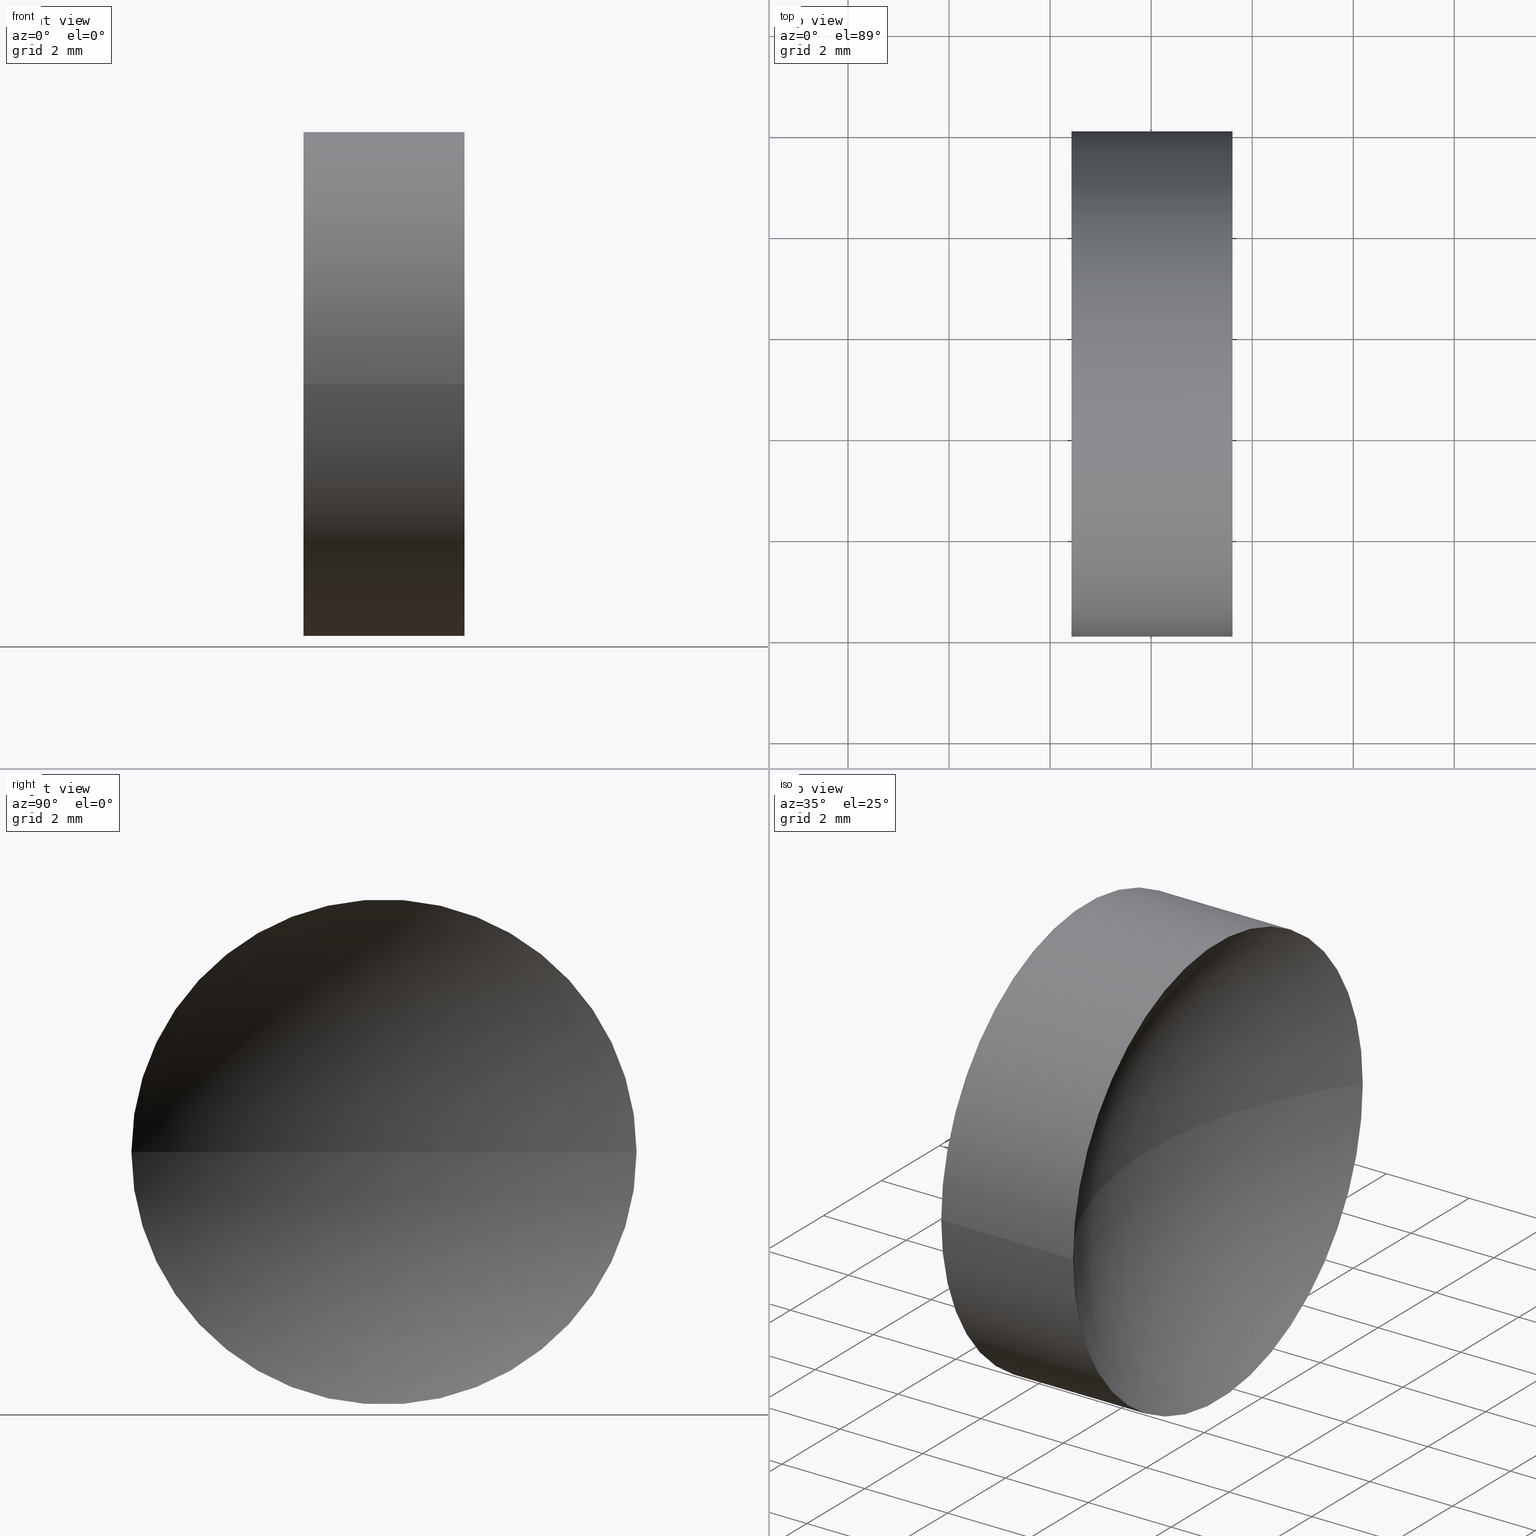
[diagram: canonical four-view strip — front | top / right | iso, engineering-drawing reading convention]
A machine part, canonical four-view strip (front | top / right | iso — engineering-drawing reading convention). The complete STEP part file that produces these views, byte-faithful:
ISO-10303-21;
HEADER;
FILE_DESCRIPTION (( 'STEP AP214' ),
    '1' );
FILE_NAME ('120131.STEP',
    '2019-06-19T02:30:04',
    ( '' ),
    ( '' ),
    'SwSTEP 2.0',
    'SolidWorks 2016',
    '' );
FILE_SCHEMA (( 'AUTOMOTIVE_DESIGN' ));
ENDSEC;

DATA;
#1 = CARTESIAN_POINT ( 'NONE',  ( 21.50597511808246100, 13.03112609140304200, 0.0000000000000000000 ) ) ;
#2 = ORIENTED_EDGE ( 'NONE', *, *, #95, .F. ) ;
#3 =( GEOMETRIC_REPRESENTATION_CONTEXT ( 3 ) GLOBAL_UNCERTAINTY_ASSIGNED_CONTEXT ( ( #143 ) ) GLOBAL_UNIT_ASSIGNED_CONTEXT ( ( #86, #62, #122 ) ) REPRESENTATION_CONTEXT ( 'NONE', 'WORKASPACE' ) );
#4 = ADVANCED_BREP_SHAPE_REPRESENTATION ( '120131', ( #155, #18 ), #160 ) ;
#5 = CIRCLE ( 'NONE', #43, 5.000000000000000900 ) ;
#6 = FACE_OUTER_BOUND ( 'NONE', #110, .T. ) ;
#7 = SURFACE_STYLE_USAGE ( .BOTH. , #63 ) ;
#8 = EDGE_LOOP ( 'NONE', ( #31, #13, #59 ) ) ;
#9 =( LENGTH_UNIT ( ) NAMED_UNIT ( * ) SI_UNIT ( .MILLI., .METRE. ) );
#10 = DIRECTION ( 'NONE',  ( 0.0000000000000000000, -1.000000000000000000, 0.0000000000000000000 ) ) ;
#11 = MECHANICAL_DESIGN_GEOMETRIC_PRESENTATION_REPRESENTATION (  '', ( #38 ), #3 ) ;
#12 = CARTESIAN_POINT ( 'NONE',  ( 21.50597511808246100, 18.03112609140304200, 6.123233995736768300E-016 ) ) ;
#13 = ORIENTED_EDGE ( 'NONE', *, *, #139, .T. ) ;
#14 = LINE ( 'NONE', #12, #152 ) ;
#15 = DIRECTION ( 'NONE',  ( -1.000000000000000000, 3.159171411554934600E-016, -0.0000000000000000000 ) ) ;
#16 = VERTEX_POINT ( 'NONE', #92 ) ;
#17 = PRODUCT_DEFINITION_CONTEXT ( 'detailed design', #125, 'design' ) ;
#18 = AXIS2_PLACEMENT_3D ( 'NONE', #140, #111, #83 ) ;
#19 = PRODUCT_CONTEXT ( 'NONE', #60, 'mechanical' ) ;
#20 = DIRECTION ( 'NONE',  ( 3.868869157118576300E-032, 1.224646799147353200E-016, -1.000000000000000000 ) ) ;
#21 = COLOUR_RGB ( '',1.000000000000000000, 1.000000000000000000, 1.000000000000000000 ) ;
#22 = FACE_OUTER_BOUND ( 'NONE', #56, .T. ) ;
#23 = APPLICATION_PROTOCOL_DEFINITION ( 'draft international standard', 'automotive_design', 1998, #125 ) ;
#24 =( NAMED_UNIT ( * ) PLANE_ANGLE_UNIT ( ) SI_UNIT ( $, .RADIAN. ) );
#25 = DIRECTION ( 'NONE',  ( 3.159171411554934600E-016, 1.000000000000000000, 0.0000000000000000000 ) ) ;
#26 = VERTEX_POINT ( 'NONE', #133 ) ;
#27 = DIRECTION ( 'NONE',  ( 0.0000000000000000000, 0.0000000000000000000, 1.000000000000000000 ) ) ;
#28 = DIRECTION ( 'NONE',  ( -1.000000000000000000, 3.159171411554934600E-016, -0.0000000000000000000 ) ) ;
#29 = DIRECTION ( 'NONE',  ( 0.0000000000000000000, 1.000000000000000000, 0.0000000000000000000 ) ) ;
#30 = PRODUCT_DEFINITION ( 'δ֪', '', #45, #17 ) ;
#31 = ORIENTED_EDGE ( 'NONE', *, *, #120, .F. ) ;
#32 = CIRCLE ( 'NONE', #117, 5.000000000000000900 ) ;
#33 = ORIENTED_EDGE ( 'NONE', *, *, #95, .T. ) ;
#34 = SPHERICAL_SURFACE ( 'NONE', #68, 8.259999999999996200 ) ;
#35 = SURFACE_STYLE_USAGE ( .BOTH. , #100 ) ;
#36 = UNCERTAINTY_MEASURE_WITH_UNIT (LENGTH_MEASURE( 1.000000000000000100E-005 ), #101, 'distance_accuracy_value', 'NONE');
#37 = COLOUR_RGB ( '',1.000000000000000000, 1.000000000000000000, 1.000000000000000000 ) ;
#38 = STYLED_ITEM ( 'NONE', ( #42 ), #4 ) ;
#39 = CARTESIAN_POINT ( 'NONE',  ( 21.50597511808246100, 8.031126091403040200, 0.0000000000000000000 ) ) ;
#40 = DIRECTION ( 'NONE',  ( 0.0000000000000000000, 1.000000000000000000, 0.0000000000000000000 ) ) ;
#41 = CARTESIAN_POINT ( 'NONE',  ( 25.60946209566776900, 18.03112609140304600, 0.0000000000000000000 ) ) ;
#42 = PRESENTATION_STYLE_ASSIGNMENT (( #35 ) ) ;
#43 = AXIS2_PLACEMENT_3D ( 'NONE', #116, #28, #156 ) ;
#44 = ORIENTED_EDGE ( 'NONE', *, *, #153, .F. ) ;
#45 = PRODUCT_DEFINITION_FORMATION_WITH_SPECIFIED_SOURCE ( '�κ�', '', #108, .NOT_KNOWN. ) ;
#46 = FILL_AREA_STYLE ('',( #147 ) ) ;
#47 = ADVANCED_FACE ( 'NONE', ( #159 ), #34, .F. ) ;
#48 = AXIS2_PLACEMENT_3D ( 'NONE', #158, #70, #81 ) ;
#49 = FACE_OUTER_BOUND ( 'NONE', #151, .T. ) ;
#50 = DIRECTION ( 'NONE',  ( -1.000000000000000000, 3.159171411554934600E-016, -0.0000000000000000000 ) ) ;
#51 = CARTESIAN_POINT ( 'NONE',  ( 22.42423205362066000, 13.03112609140304200, 0.0000000000000000000 ) ) ;
#52 = DIRECTION ( 'NONE',  ( 0.0000000000000000000, 0.0000000000000000000, -1.000000000000000000 ) ) ;
#53 = CARTESIAN_POINT ( 'NONE',  ( 32.18423205362065400, 13.03112609140303500, 0.0000000000000000000 ) ) ;
#54 = CARTESIAN_POINT ( 'NONE',  ( 22.42423205362066000, 8.031126091403040200, 0.0000000000000000000 ) ) ;
#55 = PRESENTATION_STYLE_ASSIGNMENT (( #7 ) ) ;
#56 = EDGE_LOOP ( 'NONE', ( #96, #80, #161, #119 ) ) ;
#57 = EDGE_CURVE ( 'NONE', #69, #26, #123, .T. ) ;
#58 = ORIENTED_EDGE ( 'NONE', *, *, #139, .F. ) ;
#59 = ORIENTED_EDGE ( 'NONE', *, *, #57, .F. ) ;
#60 = APPLICATION_CONTEXT ( 'automotive_design' ) ;
#61 =( NAMED_UNIT ( * ) SI_UNIT ( $, .STERADIAN. ) SOLID_ANGLE_UNIT ( ) );
#62 =( NAMED_UNIT ( * ) PLANE_ANGLE_UNIT ( ) SI_UNIT ( $, .RADIAN. ) );
#63 = SURFACE_SIDE_STYLE ('',( #94 ) ) ;
#64 = ADVANCED_FACE ( 'NONE', ( #22 ), #114, .T. ) ;
#65 = ORIENTED_EDGE ( 'NONE', *, *, #120, .T. ) ;
#66 = ORIENTED_EDGE ( 'NONE', *, *, #103, .T. ) ;
#67 = PLANE ( 'NONE',  #138 ) ;
#68 = AXIS2_PLACEMENT_3D ( 'NONE', #53, #52, #40 ) ;
#69 = VERTEX_POINT ( 'NONE', #41 ) ;
#70 = DIRECTION ( 'NONE',  ( -1.000000000000000000, 3.159171411554934600E-016, -0.0000000000000000000 ) ) ;
#71 = AXIS2_PLACEMENT_3D ( 'NONE', #77, #27, #134 ) ;
#72 =( NAMED_UNIT ( * ) SI_UNIT ( $, .STERADIAN. ) SOLID_ANGLE_UNIT ( ) );
#73 = SPHERICAL_SURFACE ( 'NONE', #136, 8.259999999999996200 ) ;
#74 = AXIS2_PLACEMENT_3D ( 'NONE', #146, #15, #118 ) ;
#75 = CIRCLE ( 'NONE', #128, 5.000000000000002700 ) ;
#76 = DIRECTION ( 'NONE',  ( -1.000000000000000000, 3.159171411554934600E-016, -0.0000000000000000000 ) ) ;
#77 = CARTESIAN_POINT ( 'NONE',  ( 32.18423205362065400, 13.03112609140303500, 0.0000000000000000000 ) ) ;
#78 = DIRECTION ( 'NONE',  ( 0.0000000000000000000, -1.000000000000000000, 0.0000000000000000000 ) ) ;
#79 = PRESENTATION_LAYER_ASSIGNMENT (  '', '', ( #145 ) ) ;
#80 = ORIENTED_EDGE ( 'NONE', *, *, #137, .T. ) ;
#81 = DIRECTION ( 'NONE',  ( 0.0000000000000000000, -1.000000000000000000, 0.0000000000000000000 ) ) ;
#82 =( GEOMETRIC_REPRESENTATION_CONTEXT ( 3 ) GLOBAL_UNCERTAINTY_ASSIGNED_CONTEXT ( ( #97 ) ) GLOBAL_UNIT_ASSIGNED_CONTEXT ( ( #9, #24, #72 ) ) REPRESENTATION_CONTEXT ( 'NONE', 'WORKASPACE' ) );
#83 = DIRECTION ( 'NONE',  ( 1.000000000000000000, 0.0000000000000000000, 0.0000000000000000000 ) ) ;
#84 = DIRECTION ( 'NONE',  ( -1.000000000000000000, 3.159171411554934600E-016, -0.0000000000000000000 ) ) ;
#85 = EDGE_LOOP ( 'NONE', ( #58, #135, #98 ) ) ;
#86 =( LENGTH_UNIT ( ) NAMED_UNIT ( * ) SI_UNIT ( .MILLI., .METRE. ) );
#87 = ADVANCED_FACE ( 'NONE', ( #148 ), #73, .F. ) ;
#88 = AXIS2_PLACEMENT_3D ( 'NONE', #1, #50, #78 ) ;
#89 = VECTOR ( 'NONE', #84, 1000.000000000000000 ) ;
#90 = ORIENTED_EDGE ( 'NONE', *, *, #131, .T. ) ;
#91 = DIRECTION ( 'NONE',  ( 0.0000000000000000000, 0.0000000000000000000, -1.000000000000000000 ) ) ;
#92 = CARTESIAN_POINT ( 'NONE',  ( 22.42423205362066000, 18.03112609140304200, 6.123233995736768300E-016 ) ) ;
#93 = CLOSED_SHELL ( 'NONE', ( #127, #87, #47, #64, #149 ) ) ;
#94 = SURFACE_STYLE_FILL_AREA ( #112 ) ;
#95 = EDGE_CURVE ( 'NONE', #129, #16, #5, .T. ) ;
#96 = ORIENTED_EDGE ( 'NONE', *, *, #131, .F. ) ;
#97 = UNCERTAINTY_MEASURE_WITH_UNIT (LENGTH_MEASURE( 1.000000000000000100E-005 ), #9, 'distance_accuracy_value', 'NONE');
#98 = ORIENTED_EDGE ( 'NONE', *, *, #57, .T. ) ;
#99 = PRODUCT_RELATED_PRODUCT_CATEGORY ( 'part', '', ( #108 ) ) ;
#100 = SURFACE_SIDE_STYLE ('',( #121 ) ) ;
#101 =( LENGTH_UNIT ( ) NAMED_UNIT ( * ) SI_UNIT ( .MILLI., .METRE. ) );
#102 = DIRECTION ( 'NONE',  ( -1.000000000000000000, 3.159171411554934600E-016, -0.0000000000000000000 ) ) ;
#103 = EDGE_CURVE ( 'NONE', #16, #129, #32, .T. ) ;
#104 = DIRECTION ( 'NONE',  ( 0.0000000000000000000, -1.000000000000000000, 0.0000000000000000000 ) ) ;
#105 = PRESENTATION_LAYER_ASSIGNMENT (  '', '', ( #38 ) ) ;
#106 = AXIS2_PLACEMENT_3D ( 'NONE', #162, #20, #109 ) ;
#107 = LINE ( 'NONE', #39, #89 ) ;
#108 = PRODUCT ( '120131', '120131', '', ( #19 ) ) ;
#109 = DIRECTION ( 'NONE',  ( 0.0000000000000000000, 1.000000000000000000, 1.224646799147353200E-016 ) ) ;
#110 = EDGE_LOOP ( 'NONE', ( #33, #66 ) ) ;
#111 = DIRECTION ( 'NONE',  ( 0.0000000000000000000, 0.0000000000000000000, 1.000000000000000000 ) ) ;
#112 = FILL_AREA_STYLE ('',( #113 ) ) ;
#113 = FILL_AREA_STYLE_COLOUR ( '', #21 ) ;
#114 = CYLINDRICAL_SURFACE ( 'NONE', #88, 5.000000000000000900 ) ;
#115 = DIRECTION ( 'NONE',  ( -1.000000000000000000, 3.159171411554934600E-016, -0.0000000000000000000 ) ) ;
#116 = CARTESIAN_POINT ( 'NONE',  ( 22.42423205362066000, 13.03112609140304200, 0.0000000000000000000 ) ) ;
#117 = AXIS2_PLACEMENT_3D ( 'NONE', #166, #115, #104 ) ;
#118 = DIRECTION ( 'NONE',  ( 0.0000000000000000000, -1.000000000000000000, 0.0000000000000000000 ) ) ;
#119 = ORIENTED_EDGE ( 'NONE', *, *, #103, .F. ) ;
#120 = EDGE_CURVE ( 'NONE', #165, #69, #154, .T. ) ;
#121 = SURFACE_STYLE_FILL_AREA ( #46 ) ;
#122 =( NAMED_UNIT ( * ) SI_UNIT ( $, .STERADIAN. ) SOLID_ANGLE_UNIT ( ) );
#123 = CIRCLE ( 'NONE', #71, 8.259999999999996200 ) ;
#124 = CYLINDRICAL_SURFACE ( 'NONE', #74, 5.000000000000000900 ) ;
#125 = APPLICATION_CONTEXT ( 'automotive_design' ) ;
#126 =( NAMED_UNIT ( * ) PLANE_ANGLE_UNIT ( ) SI_UNIT ( $, .RADIAN. ) );
#127 = ADVANCED_FACE ( 'NONE', ( #49 ), #124, .T. ) ;
#128 = AXIS2_PLACEMENT_3D ( 'NONE', #164, #102, #10 ) ;
#129 = VERTEX_POINT ( 'NONE', #54 ) ;
#130 = CIRCLE ( 'NONE', #106, 8.259999999999996200 ) ;
#131 = EDGE_CURVE ( 'NONE', #69, #16, #14, .T. ) ;
#132 = SHAPE_DEFINITION_REPRESENTATION ( #144, #4 ) ;
#133 = CARTESIAN_POINT ( 'NONE',  ( 23.92423205362066000, 13.03112609140303800, 0.0000000000000000000 ) ) ;
#134 = DIRECTION ( 'NONE',  ( 1.000000000000000000, 0.0000000000000000000, 0.0000000000000000000 ) ) ;
#135 = ORIENTED_EDGE ( 'NONE', *, *, #137, .F. ) ;
#136 = AXIS2_PLACEMENT_3D ( 'NONE', #142, #91, #29 ) ;
#137 = EDGE_CURVE ( 'NONE', #69, #165, #75, .T. ) ;
#138 = AXIS2_PLACEMENT_3D ( 'NONE', #51, #157, #25 ) ;
#139 = EDGE_CURVE ( 'NONE', #165, #26, #130, .T. ) ;
#140 = CARTESIAN_POINT ( 'NONE',  ( 0.0000000000000000000, 0.0000000000000000000, 0.0000000000000000000 ) ) ;
#141 = APPLICATION_PROTOCOL_DEFINITION ( 'draft international standard', 'automotive_design', 1998, #60 ) ;
#142 = CARTESIAN_POINT ( 'NONE',  ( 32.18423205362065400, 13.03112609140303500, 0.0000000000000000000 ) ) ;
#143 = UNCERTAINTY_MEASURE_WITH_UNIT (LENGTH_MEASURE( 1.000000000000000100E-005 ), #86, 'distance_accuracy_value', 'NONE');
#144 = PRODUCT_DEFINITION_SHAPE ( 'NONE', 'NONE',  #30 ) ;
#145 = STYLED_ITEM ( 'NONE', ( #55 ), #155 ) ;
#146 = CARTESIAN_POINT ( 'NONE',  ( 21.50597511808246100, 13.03112609140304200, 0.0000000000000000000 ) ) ;
#147 = FILL_AREA_STYLE_COLOUR ( '', #37 ) ;
#148 = FACE_OUTER_BOUND ( 'NONE', #8, .T. ) ;
#149 = ADVANCED_FACE ( 'NONE', ( #6 ), #67, .F. ) ;
#150 = MECHANICAL_DESIGN_GEOMETRIC_PRESENTATION_REPRESENTATION (  '', ( #145 ), #82 ) ;
#151 = EDGE_LOOP ( 'NONE', ( #65, #90, #2, #44 ) ) ;
#152 = VECTOR ( 'NONE', #76, 1000.000000000000000 ) ;
#153 = EDGE_CURVE ( 'NONE', #165, #129, #107, .T. ) ;
#154 = CIRCLE ( 'NONE', #48, 5.000000000000002700 ) ;
#155 = MANIFOLD_SOLID_BREP ( '��ת1', #93 ) ;
#156 = DIRECTION ( 'NONE',  ( 0.0000000000000000000, -1.000000000000000000, 0.0000000000000000000 ) ) ;
#157 = DIRECTION ( 'NONE',  ( 1.000000000000000000, -3.159171411554934600E-016, 0.0000000000000000000 ) ) ;
#158 = CARTESIAN_POINT ( 'NONE',  ( 25.60946209566776600, 13.03112609140304000, 0.0000000000000000000 ) ) ;
#159 = FACE_OUTER_BOUND ( 'NONE', #85, .T. ) ;
#160 =( GEOMETRIC_REPRESENTATION_CONTEXT ( 3 ) GLOBAL_UNCERTAINTY_ASSIGNED_CONTEXT ( ( #36 ) ) GLOBAL_UNIT_ASSIGNED_CONTEXT ( ( #101, #126, #61 ) ) REPRESENTATION_CONTEXT ( 'NONE', 'WORKASPACE' ) );
#161 = ORIENTED_EDGE ( 'NONE', *, *, #153, .T. ) ;
#162 = CARTESIAN_POINT ( 'NONE',  ( 32.18423205362065400, 13.03112609140303500, 0.0000000000000000000 ) ) ;
#163 = CARTESIAN_POINT ( 'NONE',  ( 25.60946209566776600, 8.031126091403031400, -6.123233995736772200E-016 ) ) ;
#164 = CARTESIAN_POINT ( 'NONE',  ( 25.60946209566776600, 13.03112609140304000, 0.0000000000000000000 ) ) ;
#165 = VERTEX_POINT ( 'NONE', #163 ) ;
#166 = CARTESIAN_POINT ( 'NONE',  ( 22.42423205362066000, 13.03112609140304200, 0.0000000000000000000 ) ) ;
ENDSEC;
END-ISO-10303-21;
